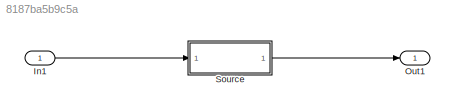
MODEL slx_8187ba5b9c5a
KIND model
CONFIG AbsTol = auto
CONFIG EnableMultiTasking = off
CONFIG FixedStep = auto
CONFIG MaxStep = auto
CONFIG MinStep = auto
CONFIG RelTol = 1e-3
CONFIG SampleTimeConstraint = Unconstrained
CONFIG Solver = VariableStepAuto
CONFIG SolverName = VariableStepAuto
CONFIG StartTime = 0.0
CONFIG StopTime = 10.0
WORKSPACE source: mxarray member
WORKSPACE InputValues_20210824T100641914 = [-5 -4.9375 -4.875 -4.8125 -4.75 -4.6875 -4.625 -4.5625 -4.5 -4.4375 -4.375 -4.3125 ... (161 elements, 161x1)]
BLOCK [Inport] In1
  OutDataTypeStr = fixdt(1, 8, 4)
  PortDimensions = 1
  SampleTime = 0
BLOCK [Outport] Out1
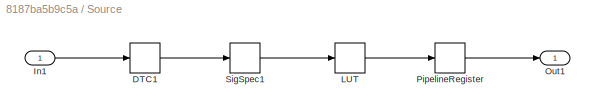
BLOCK [SubSystem] Source
  Ports = [1, 1]
  RequestExecContextInheritance = off
BLOCK [DataTypeConversion] Source/DTC1
  OutDataTypeStr = fixdt(1, 8, 4)
  RndMeth = Nearest
  SampleTime = 0
  SaturateOnIntegerOverflow = off
BLOCK [Inport] Source/In1
  OutDataTypeStr = fixdt(1, 8, 4)
  PortDimensions = 1
  SampleTime = 0
BLOCK [Lookup_n-D] Source/LUT
  BreakpointsForDimension1 = fi("numerictype",numerictype(1,8,4),"fimath",fimath("RoundingMethod", "Floor","OverflowAction", "Wrap","ProductMode","FullPrecision","SumMode","FullPrecision"),"Value","[-5 -4.9375 -4.875 -4.8125 -4.75 -4.6875 -4.625 -4.5625 -4.5 -4.4375 -4.375 -4.3125 -4.25 -4.1875 -4.125 -4.0625 -4 -3.9375 -3.875 -3.8125 -3.75 -3.6875 -3.625 -3.5625 -3.5 -3.4375 -3.375 -3.3125 -3.25 -3.1875 -3.125 -3.0625 -3 -2....<+805ch>
  ExtrapMethod = Clip
  InterpMethod = Flat
  NumberOfTableDimensions = 1
  OutDataTypeStr = fixdt(1, 8, 7)
  Ports = [1, 1]
  RndMeth = Simplest
  SampleTime = 0
  Table = reshape(fi("numerictype",numerictype(1,8,7),"fimath",fimath("RoundingMethod", "Floor","OverflowAction", "Wrap","ProductMode","FullPrecision","SumMode","FullPrecision"),"Value","[-1;-1;-1;-1;-1;-1;-1;-1;-1;-1;-1;-1;-1;-1;-1;-1;-1;-1;-1;-1;-1;-1;-1;-1;-1;-1;-1;-1;-1;-1;-1;-0.9921875;-0.9921875;-0.9921875;-0.9921875;-0.9921875;-0.9921875;-0.9921875;-0.9921875;-0.984375;-0.984375;-0.984375;-0.984375;-...<+1125ch>
BLOCK [Outport] Source/Out1
BLOCK [Delay] Source/PipelineRegister
  DelayLength = double(1)
  InitialCondition = 0
  InputPortMap = u0
  Ports = [1, 1]
BLOCK [SignalSpecification] Source/SigSpec1
  Dimensions = 1
  OutDataTypeStr = fixdt(1, 8, 4)
LINE In1:1 -> Source:1
LINE Source/DTC1:1 -> Source/SigSpec1:1
LINE Source/In1:1 -> Source/DTC1:1
LINE Source/LUT:1 -> Source/PipelineRegister:1
LINE Source/PipelineRegister:1 -> Source/Out1:1
LINE Source/SigSpec1:1 -> Source/LUT:1
LINE Source:1 -> Out1:1
